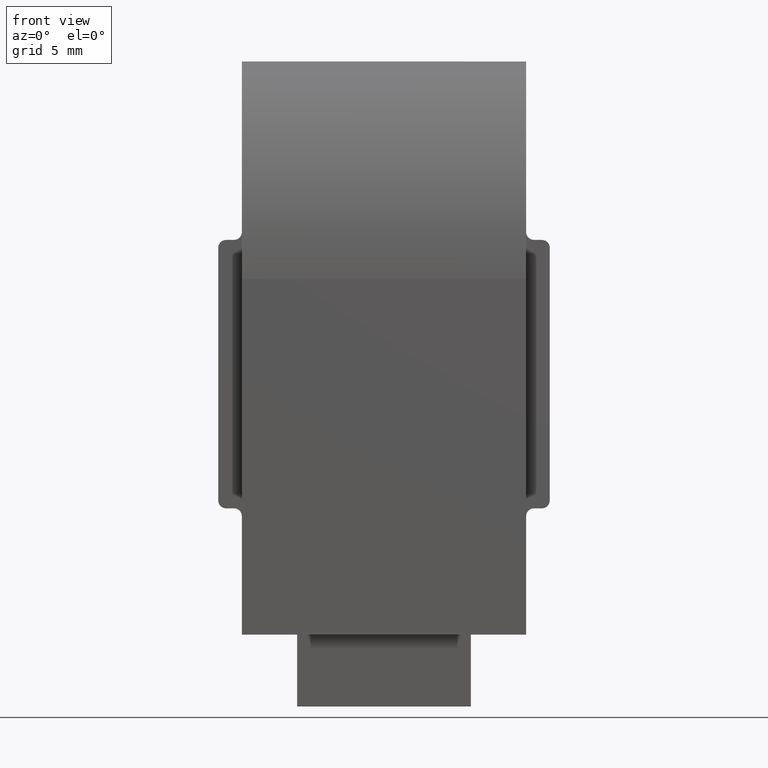
[diagram: clean part render]
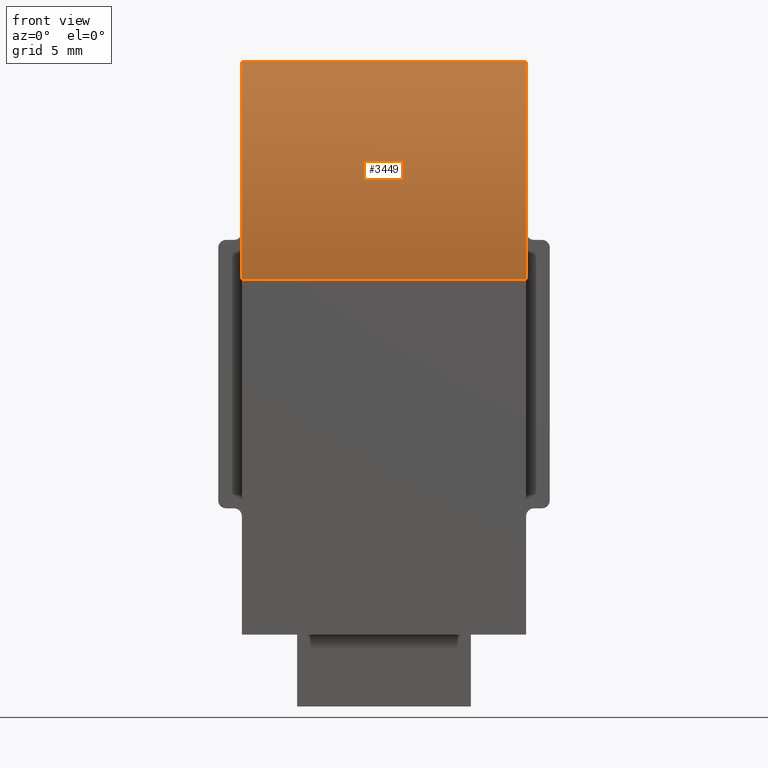
[diagram: same view with one face highlighted and labeled with its STEP entity id]
A machine part, front view. The second image highlights one B-rep face of the part: STEP entity #3449.
In plain terms, the highlighted cylindrical surface (partial cylindrical patch) has radius 22.5 mm, axis along (-1, -0, -0).
Its self-contained STEP definition (entity closure, byte-faithful):
#301 = VECTOR ( 'NONE', #1930, 1000.000000000000000 ) ;
#352 = ORIENTED_EDGE ( 'NONE', *, *, #3051, .F. ) ;
#560 = CARTESIAN_POINT ( 'NONE',  ( 9.000000000000000000, 4.728956136456109682, 36.29999999999999716 ) ) ;
#1783 = ORIENTED_EDGE ( 'NONE', *, *, #6663, .F. ) ;
#1798 = VERTEX_POINT ( 'NONE', #15428 ) ;
#1930 = DIRECTION ( 'NONE',  ( -1.000000000000000000, -0.000000000000000000, -0.000000000000000000 ) ) ;
#3051 = EDGE_CURVE ( 'NONE', #6208, #1798, #8967, .T. ) ;
#3235 = AXIS2_PLACEMENT_3D ( 'NONE', #10586, #5010, #9014 ) ;
#3449 = ADVANCED_FACE ( 'NONE', ( #10484 ), #4045, .T. ) ;
#4045 = CYLINDRICAL_SURFACE ( 'NONE', #5856, 22.50000000000000355 ) ;
#4584 = LINE ( 'NONE', #560, #301 ) ;
#5010 = DIRECTION ( 'NONE',  ( 1.000000000000000000, -0.000000000000000000, 0.000000000000000000 ) ) ;
#5522 = CIRCLE ( 'NONE', #3235, 22.50000000000000711 ) ;
#5856 = AXIS2_PLACEMENT_3D ( 'NONE', #15436, #10008, #17031 ) ;
#6030 = ORIENTED_EDGE ( 'NONE', *, *, #8735, .T. ) ;
#6206 = ORIENTED_EDGE ( 'NONE', *, *, #13519, .T. ) ;
#6208 = VERTEX_POINT ( 'NONE', #16895 ) ;
#6255 = CARTESIAN_POINT ( 'NONE',  ( -9.000000000000000000, 4.728956136456109682, 36.29999999999999716 ) ) ;
#6396 = DIRECTION ( 'NONE',  ( -1.000000000000000000, -0.000000000000000000, -0.000000000000000000 ) ) ;
#6663 = EDGE_CURVE ( 'NONE', #14502, #6208, #5522, .T. ) ;
#7275 = CARTESIAN_POINT ( 'NONE',  ( 9.000000000000000000, 4.728956136456109682, 36.29999999999999716 ) ) ;
#7387 = CIRCLE ( 'NONE', #16021, 22.50000000000000711 ) ;
#8735 = EDGE_CURVE ( 'NONE', #14502, #12982, #4584, .T. ) ;
#8967 = LINE ( 'NONE', #10461, #15378 ) ;
#9014 = DIRECTION ( 'NONE',  ( 0.000000000000000000, 0.000000000000000000, -1.000000000000000000 ) ) ;
#9404 = CARTESIAN_POINT ( 'NONE',  ( -9.000000000000000000, 22.49999999999999289, 22.50000000000001066 ) ) ;
#10008 = DIRECTION ( 'NONE',  ( -1.000000000000000000, -0.000000000000000000, -0.000000000000000000 ) ) ;
#10461 = CARTESIAN_POINT ( 'NONE',  ( 9.000000000000000000, -1.387778780781445676E-14, 22.50000000000001066 ) ) ;
#10484 = FACE_OUTER_BOUND ( 'NONE', #14225, .T. ) ;
#10586 = CARTESIAN_POINT ( 'NONE',  ( 9.000000000000000000, 22.49999999999999289, 22.50000000000001066 ) ) ;
#12183 = DIRECTION ( 'NONE',  ( 0.000000000000000000, 0.000000000000000000, -1.000000000000000000 ) ) ;
#12982 = VERTEX_POINT ( 'NONE', #6255 ) ;
#13519 = EDGE_CURVE ( 'NONE', #12982, #1798, #7387, .T. ) ;
#14225 = EDGE_LOOP ( 'NONE', ( #6206, #352, #1783, #6030 ) ) ;
#14502 = VERTEX_POINT ( 'NONE', #7275 ) ;
#15021 = DIRECTION ( 'NONE',  ( 1.000000000000000000, -0.000000000000000000, 0.000000000000000000 ) ) ;
#15378 = VECTOR ( 'NONE', #6396, 1000.000000000000000 ) ;
#15428 = CARTESIAN_POINT ( 'NONE',  ( -9.000000000000000000, -1.387778780781445676E-14, 22.50000000000001066 ) ) ;
#15436 = CARTESIAN_POINT ( 'NONE',  ( 9.000000000000000000, 22.49999999999999289, 22.50000000000001066 ) ) ;
#16021 = AXIS2_PLACEMENT_3D ( 'NONE', #9404, #15021, #12183 ) ;
#16895 = CARTESIAN_POINT ( 'NONE',  ( 9.000000000000000000, -1.387778780781445676E-14, 22.50000000000001066 ) ) ;
#17031 = DIRECTION ( 'NONE',  ( 0.000000000000000000, 0.000000000000000000, 1.000000000000000000 ) ) ;